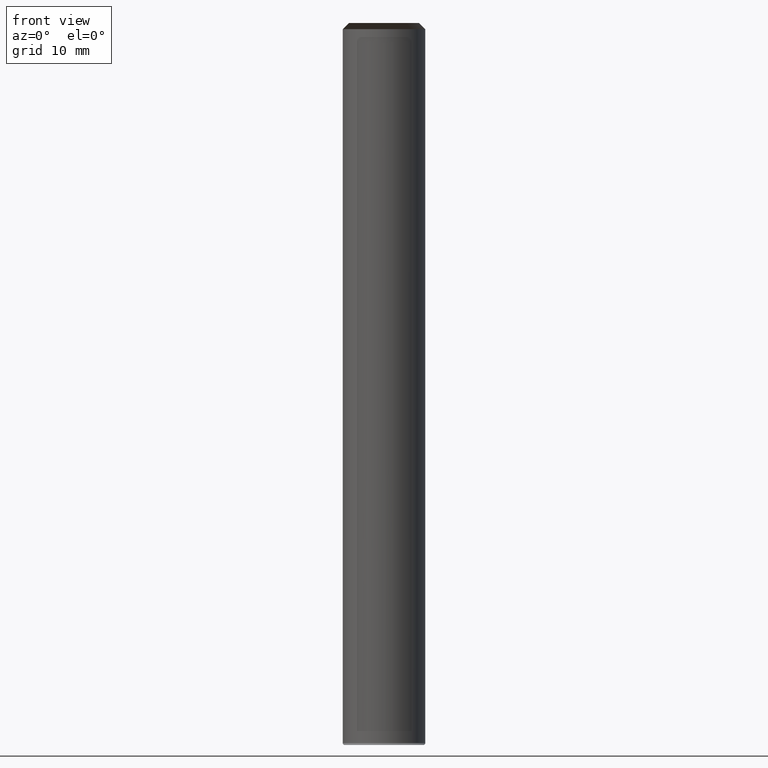
[diagram: clean part render]
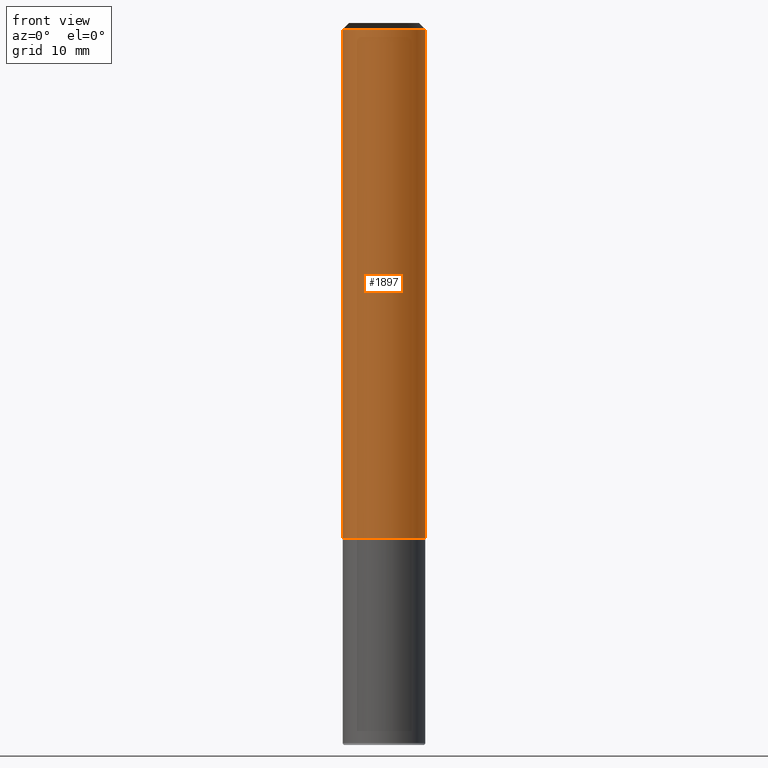
[diagram: same view with one face highlighted and labeled with its STEP entity id]
A machine part, front view. The second image highlights one B-rep face of the part: STEP entity #1897.
In plain terms, the highlighted face is a freeform B-spline surface patch.
Its self-contained STEP definition (entity closure, byte-faithful):
#1592=CARTESIAN_POINT('',(4.0,0.0,0.0));
#1596=CARTESIAN_POINT('',(-4.0,0.0,0.0));
#1613=CARTESIAN_POINT('',(-4.0,-4.0,0.0));
#1614=CARTESIAN_POINT('',(0.0,-4.0,0.0));
#1615=CARTESIAN_POINT('',(4.0,-4.0,0.0));
#1616=CARTESIAN_POINT('',(4.0,0.0,49.4));
#1620=CARTESIAN_POINT('',(-4.0,0.0,49.4));
#1627=CARTESIAN_POINT('',(-4.0,-4.0,49.4));
#1628=CARTESIAN_POINT('',(0.0,-4.0,49.4));
#1629=CARTESIAN_POINT('',(4.0,-4.0,49.4));
#1878=(
BOUNDED_SURFACE()
B_SPLINE_SURFACE(1,2,(
(#1596,#1613,#1614,#1615,#1592),
(#1620,#1627,#1628,#1629,#1616)
), .UNSPECIFIED.,.F.,.F.,.F.)
B_SPLINE_SURFACE_WITH_KNOTS((2,2),(3,2,3),(
0.0,1.0),(
0.0,0.5,1.0), .UNSPECIFIED.)
GEOMETRIC_REPRESENTATION_ITEM()
RATIONAL_B_SPLINE_SURFACE(((1.0,0.707106781187,1.0,0.707106781187,1.0),
(1.0,0.707106781187,1.0,0.707106781187,1.0)
))
REPRESENTATION_ITEM('')
SURFACE()
);
#1879=(
BOUNDED_CURVE()
B_SPLINE_CURVE(1,(#1620,#1596),.UNSPECIFIED.,.F.,.F.)
B_SPLINE_CURVE_WITH_KNOTS((2,2),
(0.0,1.0),.UNSPECIFIED.)
CURVE()
GEOMETRIC_REPRESENTATION_ITEM()
RATIONAL_B_SPLINE_CURVE((1.0,1.0))
REPRESENTATION_ITEM('')
);
#1880=(
BOUNDED_CURVE()
B_SPLINE_CURVE(2,(#1596,#1613,#1614,#1615,#1592),.UNSPECIFIED.,.F.,.F.)
B_SPLINE_CURVE_WITH_KNOTS((3,2,3),
(0.0,0.5,1.0),.UNSPECIFIED.)
CURVE()
GEOMETRIC_REPRESENTATION_ITEM()
RATIONAL_B_SPLINE_CURVE((1.0,0.707106781187,1.0,0.707106781187,1.0))
REPRESENTATION_ITEM('')
);
#1881=(
BOUNDED_CURVE()
B_SPLINE_CURVE(1,(#1592,#1616),.UNSPECIFIED.,.F.,.F.)
B_SPLINE_CURVE_WITH_KNOTS((2,2),
(0.0,1.0),.UNSPECIFIED.)
CURVE()
GEOMETRIC_REPRESENTATION_ITEM()
RATIONAL_B_SPLINE_CURVE((1.0,1.0))
REPRESENTATION_ITEM('')
);
#1882=(
BOUNDED_CURVE()
B_SPLINE_CURVE(2,(#1616,#1629,#1628,#1627,#1620),.UNSPECIFIED.,.F.,.F.)
B_SPLINE_CURVE_WITH_KNOTS((3,2,3),
(0.0,0.5,1.0),.UNSPECIFIED.)
CURVE()
GEOMETRIC_REPRESENTATION_ITEM()
RATIONAL_B_SPLINE_CURVE((1.0,0.707106781187,1.0,0.707106781187,1.0))
REPRESENTATION_ITEM('')
);
#1883=VERTEX_POINT('',#1592);
#1884=VERTEX_POINT('',#1596);
#1885=VERTEX_POINT('',#1616);
#1886=VERTEX_POINT('',#1620);
#1887=EDGE_CURVE('',#1886,#1884,#1879,.T.);
#1888=EDGE_CURVE('',#1884,#1883,#1880,.T.);
#1889=EDGE_CURVE('',#1883,#1885,#1881,.T.);
#1890=EDGE_CURVE('',#1885,#1886,#1882,.T.);
#1891=ORIENTED_EDGE('',*,*,#1887,.T.);
#1892=ORIENTED_EDGE('',*,*,#1888,.T.);
#1893=ORIENTED_EDGE('',*,*,#1889,.T.);
#1894=ORIENTED_EDGE('',*,*,#1890,.T.);
#1895=EDGE_LOOP('',(#1891,#1892,#1893,#1894));
#1896=FACE_OUTER_BOUND('',#1895,.T.);
#1897=ADVANCED_FACE('',(#1896),#1878,.T.);